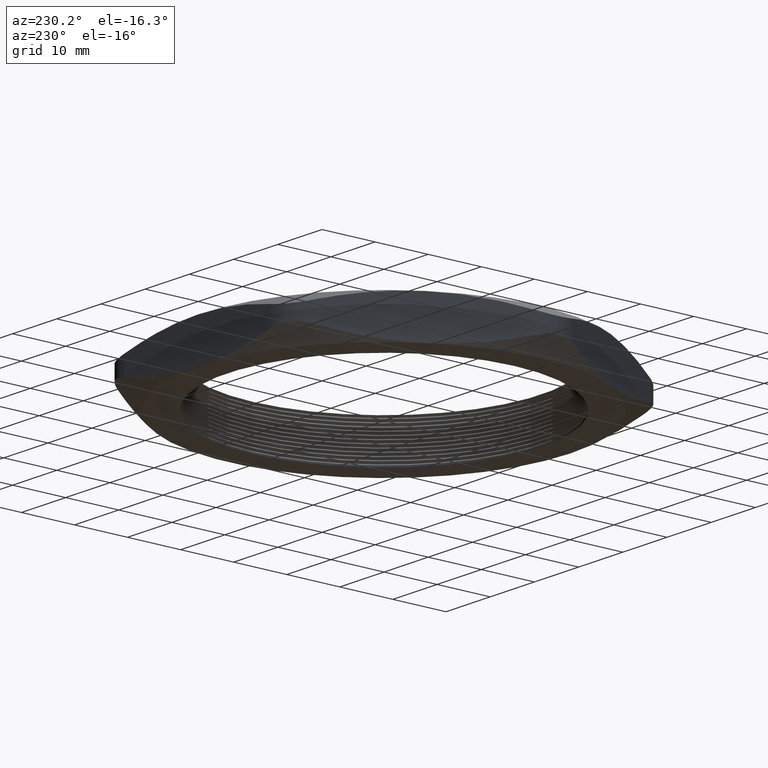
[diagram: clean part render]
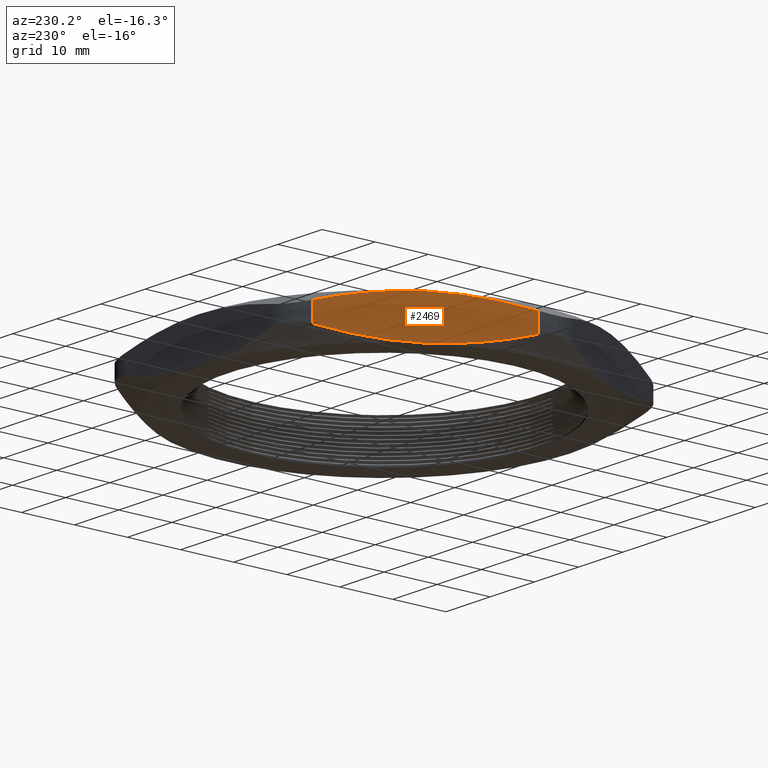
[diagram: same view with one face highlighted and labeled with its STEP entity id]
A machine part, auxiliary view. The second image highlights one B-rep face of the part: STEP entity #2469.
In plain terms, the highlighted planar face has unit normal (0.866, -0.5, 0).
Its self-contained STEP definition (entity closure, byte-faithful):
#262 = CARTESIAN_POINT ( 'NONE',  ( -1.195115057222525300, 0.6900000000000001700, 0.0000000000000000000 ) ) ;
#263 = CARTESIAN_POINT ( 'NONE',  ( -1.250494275335838800, 0.5940803805443015700, -1.611363465012905200E-016 ) ) ;
#264 = CARTESIAN_POINT ( 'NONE',  ( -1.305314306591482100, 0.4991293011370143700, 0.007785904242854183600 ) ) ;
#265 = CARTESIAN_POINT ( 'NONE',  ( -1.413982410776074800, 0.3109106235271122400, 0.03689088926135121500 ) ) ;
#266 = CARTESIAN_POINT ( 'NONE',  ( -1.467834459632706000, 0.2176361388157444800, 0.05815461073842518500 ) ) ;
#267 = CARTESIAN_POINT ( 'NONE',  ( -1.521317959314663700, 0.1250000000000002500, 0.08454987016820951500 ) ) ;
#269 = B_SPLINE_CURVE_WITH_KNOTS ( 'NONE', 3,
 ( #267, #266, #265, #264, #263, #262 ),
 .UNSPECIFIED., .F., .F.,
 ( 4, 2, 4 ),
 ( 0.003768952153750667000, 0.01212300176956831700, 0.02047705138538596600 ),
 .UNSPECIFIED. ) ;
#280 = CARTESIAN_POINT ( 'NONE',  ( -1.521317959314663700, 0.1250000000000002500, 0.08454987016820951500 ) ) ;
#486 = CARTESIAN_POINT ( 'NONE',  ( -1.195115057222525300, 0.6900000000000001700, 0.0000000000000000000 ) ) ;
#1005 = DIRECTION ( 'NONE',  ( 0.5000000000000000000, 0.8660254037844386000, 0.0000000000000000000 ) ) ;
#1006 = DIRECTION ( 'NONE',  ( 0.8660254037844387100, -0.5000000000000001100, 0.0000000000000000000 ) ) ;
#1007 = CARTESIAN_POINT ( 'NONE',  ( -0.7967433714816832800, 1.380000000000000100, 0.3100000000000000000 ) ) ;
#1008 = AXIS2_PLACEMENT_3D ( 'NONE', #1007, #1006, #1005 ) ;
#1009 = PLANE ( 'NONE',  #1008 ) ;
#1010 = FACE_OUTER_BOUND ( 'NONE', #2465, .T. ) ;
#1011 = DIRECTION ( 'NONE',  ( 0.0000000000000000000, 0.0000000000000000000, 1.000000000000000000 ) ) ;
#1012 = VECTOR ( 'NONE', #1011, 39.37007874015748100 ) ;
#1013 = CARTESIAN_POINT ( 'NONE',  ( -1.521317959314663700, 0.1250000000000001700, 0.3100000000000000000 ) ) ;
#1014 = LINE ( 'NONE', #1013, #1012 ) ;
#1015 = CARTESIAN_POINT ( 'NONE',  ( -1.521317959314663700, 0.1250000000000001900, 0.2254501298317905500 ) ) ;
#1027 = CARTESIAN_POINT ( 'NONE',  ( -1.167483135742157100, 0.7378598919147514300, 0.0004797486292217721300 ) ) ;
#1028 = CARTESIAN_POINT ( 'NONE',  ( -1.181328527765491200, 0.7138789694796273700, -1.569567613547336900E-016 ) ) ;
#1029 = CARTESIAN_POINT ( 'NONE',  ( -1.195115057222525300, 0.6900000000000001700, 0.0000000000000000000 ) ) ;
#1032 = B_SPLINE_CURVE_WITH_KNOTS ( 'NONE', 3,
 ( #1029, #1028, #1027, #1083, #1082, #1081, #1080, #1079, #1078, #1077 ),
 .UNSPECIFIED., .F., .F.,
 ( 4, 2, 2, 2, 4 ),
 ( 0.02047705138538596600, 0.02255677289532730100, 0.02463649440526864000, 0.02879593742515131800, 0.03711482346491666600 ),
 .UNSPECIFIED. ) ;
#1034 = CARTESIAN_POINT ( 'NONE',  ( -1.195115057222525300, 0.6900000000000001700, 0.3100000000000000000 ) ) ;
#1035 = CARTESIAN_POINT ( 'NONE',  ( -1.139735839109211200, 0.7859196194556985500, 0.3100000000000001600 ) ) ;
#1036 = CARTESIAN_POINT ( 'NONE',  ( -1.084915807853568100, 0.8808706988629855200, 0.3022140957571459200 ) ) ;
#1037 = CARTESIAN_POINT ( 'NONE',  ( -0.9762477036689760600, 1.069089376472888200, 0.2731091107386489600 ) ) ;
#1038 = CARTESIAN_POINT ( 'NONE',  ( -0.9223956548123440900, 1.162363861184255100, 0.2518453892615746300 ) ) ;
#1039 = CARTESIAN_POINT ( 'NONE',  ( -0.8689121551303867800, 1.254999999999999900, 0.2254501298317904700 ) ) ;
#1040 = B_SPLINE_CURVE_WITH_KNOTS ( 'NONE', 3,
 ( #1039, #1038, #1037, #1036, #1035, #1034 ),
 .UNSPECIFIED., .F., .F.,
 ( 4, 2, 4 ),
 ( 0.003768952153750672200, 0.01212300176956832200, 0.02047705138538596900 ),
 .UNSPECIFIED. ) ;
#1041 = DIRECTION ( 'NONE',  ( 0.0000000000000000000, 0.0000000000000000000, -1.000000000000000000 ) ) ;
#1042 = VECTOR ( 'NONE', #1041, 39.37007874015748100 ) ;
#1043 = CARTESIAN_POINT ( 'NONE',  ( -0.8689121551303867800, 1.254999999999999900, 0.3100000000000000000 ) ) ;
#1044 = LINE ( 'NONE', #1043, #1042 ) ;
#1053 = CARTESIAN_POINT ( 'NONE',  ( -0.8689121551303865500, 1.254999999999999900, 0.08454987016820945900 ) ) ;
#1077 = CARTESIAN_POINT ( 'NONE',  ( -0.8689121551303865500, 1.254999999999999900, 0.08454987016820945900 ) ) ;
#1078 = CARTESIAN_POINT ( 'NONE',  ( -0.9222822964244279400, 1.162560203671590300, 0.05821055554524180700 ) ) ;
#1079 = CARTESIAN_POINT ( 'NONE',  ( -0.9760731780192166700, 1.069391663765495400, 0.03695134804509954400 ) ) ;
#1080 = CARTESIAN_POINT ( 'NONE',  ( -1.057590622839085700, 0.9281993076342897100, 0.01509768426550999100 ) ) ;
#1081 = CARTESIAN_POINT ( 'NONE',  ( -1.084901594054454200, 0.8808953178852208000, 0.009485282414932131500 ) ) ;
#1082 = CARTESIAN_POINT ( 'NONE',  ( -1.126096183324479400, 0.8095441962726046500, 0.003821198915582821000 ) ) ;
#1083 = CARTESIAN_POINT ( 'NONE',  ( -1.139865678699427200, 0.7856947306886098400, 0.002391575964212714400 ) ) ;
#1084 = CARTESIAN_POINT ( 'NONE',  ( -0.8689121551303867800, 1.254999999999999900, 0.2254501298317904700 ) ) ;
#1085 = B_SPLINE_CURVE_WITH_KNOTS ( 'NONE', 3,
 ( #1145, #1144, #1143, #1142, #1141, #1140, #1139, #1138, #1137, #1136 ),
 .UNSPECIFIED., .F., .F.,
 ( 4, 2, 2, 2, 4 ),
 ( 0.02047705138538596900, 0.02255677289532730800, 0.02463649440526864700, 0.02879593742515132100, 0.03711482346491666600 ),
 .UNSPECIFIED. ) ;
#1086 = CARTESIAN_POINT ( 'NONE',  ( -1.195115057222525300, 0.6900000000000001700, 0.3100000000000000000 ) ) ;
#1136 = CARTESIAN_POINT ( 'NONE',  ( -1.521317959314663700, 0.1250000000000001900, 0.2254501298317905500 ) ) ;
#1137 = CARTESIAN_POINT ( 'NONE',  ( -1.467947818020622200, 0.2174397963284098200, 0.2517894444547582000 ) ) ;
#1138 = CARTESIAN_POINT ( 'NONE',  ( -1.414156936425834200, 0.3106083362345051200, 0.2730486519549004700 ) ) ;
#1139 = CARTESIAN_POINT ( 'NONE',  ( -1.332639491605964500, 0.4518006923657108000, 0.2949023157344900500 ) ) ;
#1140 = CARTESIAN_POINT ( 'NONE',  ( -1.305328520390596200, 0.4991046821147797100, 0.3005147175850678700 ) ) ;
#1141 = CARTESIAN_POINT ( 'NONE',  ( -1.264133931120571300, 0.5704558037273955700, 0.3061788010844172500 ) ) ;
#1142 = CARTESIAN_POINT ( 'NONE',  ( -1.250364435745622900, 0.5943052693113898300, 0.3076084240357872000 ) ) ;
#1143 = CARTESIAN_POINT ( 'NONE',  ( -1.222746978702893500, 0.6421401080852489100, 0.3095202513707782700 ) ) ;
#1144 = CARTESIAN_POINT ( 'NONE',  ( -1.208901586679558700, 0.6661210305203723000, 0.3100000000000001100 ) ) ;
#1145 = CARTESIAN_POINT ( 'NONE',  ( -1.195115057222525300, 0.6900000000000001700, 0.3100000000000000000 ) ) ;
#2121 = VERTEX_POINT ( 'NONE', #280 ) ;
#2123 = EDGE_CURVE ( 'NONE', #2121, #2228, #269, .T. ) ;
#2228 = VERTEX_POINT ( 'NONE', #486 ) ;
#2465 = EDGE_LOOP ( 'NONE', ( #2471, #2468, #2503, #2485, #2477, #2480 ) ) ;
#2466 = VERTEX_POINT ( 'NONE', #1015 ) ;
#2467 = EDGE_CURVE ( 'NONE', #2121, #2466, #1014, .T. ) ;
#2468 = ORIENTED_EDGE ( 'NONE', *, *, #2467, .T. ) ;
#2469 = ADVANCED_FACE ( 'NONE', ( #1010 ), #1009, .F. ) ;
#2471 = ORIENTED_EDGE ( 'NONE', *, *, #2123, .F. ) ;
#2477 = ORIENTED_EDGE ( 'NONE', *, *, #2482, .T. ) ;
#2480 = ORIENTED_EDGE ( 'NONE', *, *, #2484, .F. ) ;
#2481 = VERTEX_POINT ( 'NONE', #1053 ) ;
#2482 = EDGE_CURVE ( 'NONE', #2505, #2481, #1044, .T. ) ;
#2483 = EDGE_CURVE ( 'NONE', #2505, #2507, #1040, .T. ) ;
#2484 = EDGE_CURVE ( 'NONE', #2228, #2481, #1032, .T. ) ;
#2485 = ORIENTED_EDGE ( 'NONE', *, *, #2483, .F. ) ;
#2503 = ORIENTED_EDGE ( 'NONE', *, *, #2504, .F. ) ;
#2504 = EDGE_CURVE ( 'NONE', #2507, #2466, #1085, .T. ) ;
#2505 = VERTEX_POINT ( 'NONE', #1084 ) ;
#2507 = VERTEX_POINT ( 'NONE', #1086 ) ;